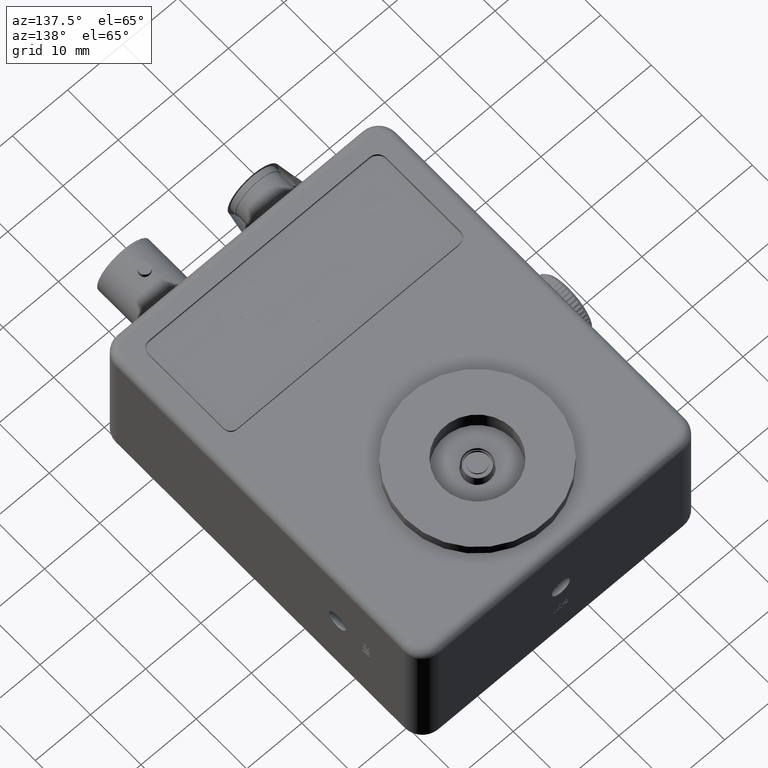
[diagram: clean part render]
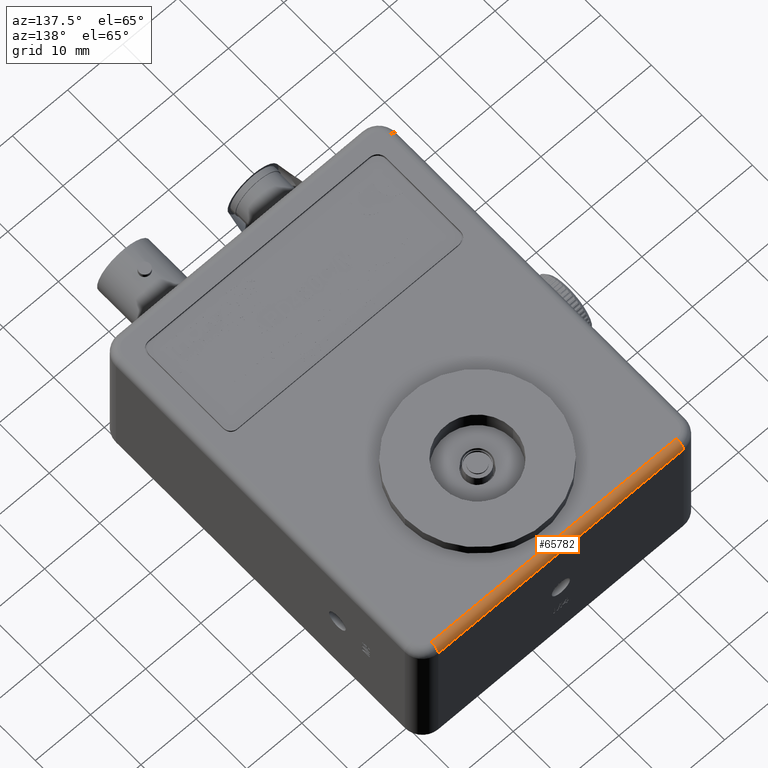
[diagram: same view with one face highlighted and labeled with its STEP entity id]
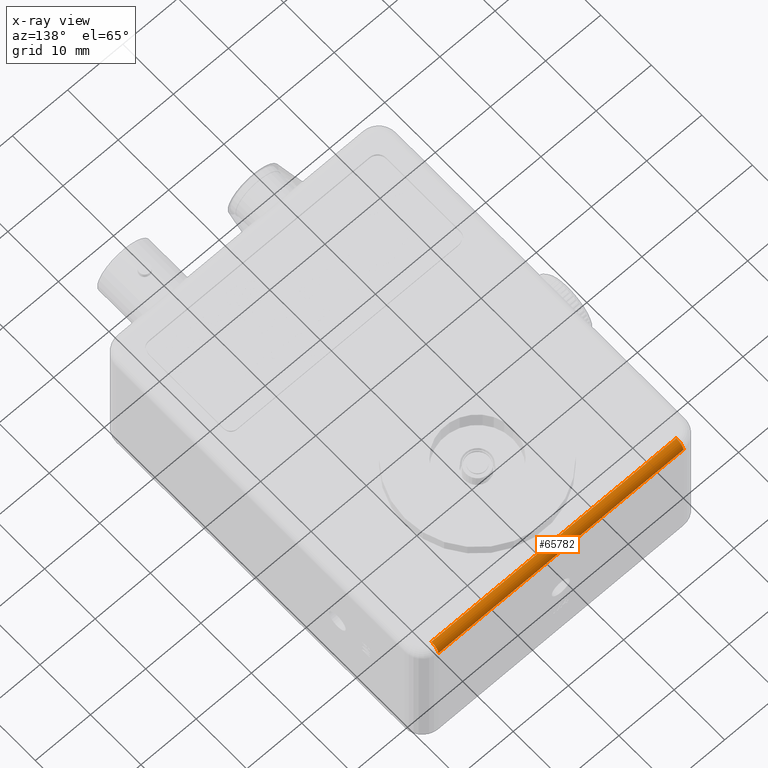
[diagram: x-ray of the same camera — body ghosted, the highlighted face saturated]
A machine part, auxiliary view. The second image highlights one B-rep face of the part: STEP entity #65782.
The next image is the same camera in x-ray: the body ghosted, the highlighted face saturated — about 0% of this face is hidden behind the body in this view.
In plain terms, the highlighted cylindrical surface (edge-blend (fillet) strip) has radius 1.397 mm, axis along (-1, 0, 0).
Its self-contained STEP definition (entity closure, byte-faithful):
#1646 = AXIS2_PLACEMENT_3D ( 'NONE', #20018, #19714, #19595 ) ;
#4664 = EDGE_CURVE ( 'NONE', #126330, #128981, #96572, .T. ) ;
#4899 = ORIENTED_EDGE ( 'NONE', *, *, #4664, .F. ) ;
#5583 = AXIS2_PLACEMENT_3D ( 'NONE', #123208, #122768, #62195 ) ;
#19595 = DIRECTION ( 'NONE',  ( 0.0000000000000000000, 0.0000000000000000000, 1.000000000000000000 ) ) ;
#19714 = DIRECTION ( 'NONE',  ( -1.000000000000000000, 0.0000000000000000000, 0.0000000000000000000 ) ) ;
#20018 = CARTESIAN_POINT ( 'NONE',  ( 3.174999999999999800, 62.10300000000000200, 24.00300000000000000 ) ) ;
#20683 = VECTOR ( 'NONE', #111227, 1000.000000000000000 ) ;
#21628 = DIRECTION ( 'NONE',  ( 1.000000000000000000, -0.0000000000000000000, -0.0000000000000000000 ) ) ;
#22439 = CARTESIAN_POINT ( 'NONE',  ( 47.62500000000000000, 62.10300000000000900, 24.00300000000000000 ) ) ;
#24917 = ORIENTED_EDGE ( 'NONE', *, *, #103162, .T. ) ;
#28925 = EDGE_CURVE ( 'NONE', #128981, #124532, #92250, .T. ) ;
#32573 = DIRECTION ( 'NONE',  ( 0.0000000000000000000, 0.0000000000000000000, 1.000000000000000000 ) ) ;
#38811 = VECTOR ( 'NONE', #21628, 1000.000000000000000 ) ;
#50617 = LINE ( 'NONE', #80962, #20683 ) ;
#52442 = CARTESIAN_POINT ( 'NONE',  ( 0.0000000000000000000, 63.50000000000000000, 24.00300000000000000 ) ) ;
#62195 = DIRECTION ( 'NONE',  ( 0.0000000000000000000, 0.0000000000000000000, 1.000000000000000000 ) ) ;
#63407 = ORIENTED_EDGE ( 'NONE', *, *, #111270, .F. ) ;
#65782 = ADVANCED_FACE ( 'NONE', ( #106600 ), #103457, .T. ) ;
#80962 = CARTESIAN_POINT ( 'NONE',  ( 0.0000000000000000000, 62.10300000000000200, 25.39999999999999900 ) ) ;
#92250 = LINE ( 'NONE', #52442, #38811 ) ;
#92683 = ORIENTED_EDGE ( 'NONE', *, *, #28925, .F. ) ;
#92720 = DIRECTION ( 'NONE',  ( -1.000000000000000000, 0.0000000000000000000, 0.0000000000000000000 ) ) ;
#96463 = CARTESIAN_POINT ( 'NONE',  ( 3.174999999999999800, 63.50000000000000000, 24.00300000000000000 ) ) ;
#96572 = CIRCLE ( 'NONE', #1646, 1.396999999999998900 ) ;
#99921 = EDGE_LOOP ( 'NONE', ( #24917, #92683, #4899, #63407 ) ) ;
#103145 = CIRCLE ( 'NONE', #115317, 1.396999999999998900 ) ;
#103162 = EDGE_CURVE ( 'NONE', #117762, #124532, #103145, .T. ) ;
#103457 = CYLINDRICAL_SURFACE ( 'NONE', #5583, 1.396999999999998900 ) ;
#106600 = FACE_OUTER_BOUND ( 'NONE', #99921, .T. ) ;
#111227 = DIRECTION ( 'NONE',  ( -1.000000000000000000, 0.0000000000000000000, 0.0000000000000000000 ) ) ;
#111270 = EDGE_CURVE ( 'NONE', #117762, #126330, #50617, .T. ) ;
#112318 = CARTESIAN_POINT ( 'NONE',  ( 47.62500000000000000, 62.10300000000000900, 25.39999999999999900 ) ) ;
#115317 = AXIS2_PLACEMENT_3D ( 'NONE', #22439, #92720, #32573 ) ;
#117762 = VERTEX_POINT ( 'NONE', #112318 ) ;
#122768 = DIRECTION ( 'NONE',  ( -1.000000000000000000, 0.0000000000000000000, 0.0000000000000000000 ) ) ;
#123208 = CARTESIAN_POINT ( 'NONE',  ( 0.0000000000000000000, 62.10300000000000200, 24.00300000000000000 ) ) ;
#124353 = CARTESIAN_POINT ( 'NONE',  ( 47.62500000000000000, 63.50000000000000000, 24.00300000000000000 ) ) ;
#124532 = VERTEX_POINT ( 'NONE', #124353 ) ;
#126330 = VERTEX_POINT ( 'NONE', #128638 ) ;
#128638 = CARTESIAN_POINT ( 'NONE',  ( 3.174999999999999800, 62.10300000000000200, 25.39999999999999900 ) ) ;
#128981 = VERTEX_POINT ( 'NONE', #96463 ) ;